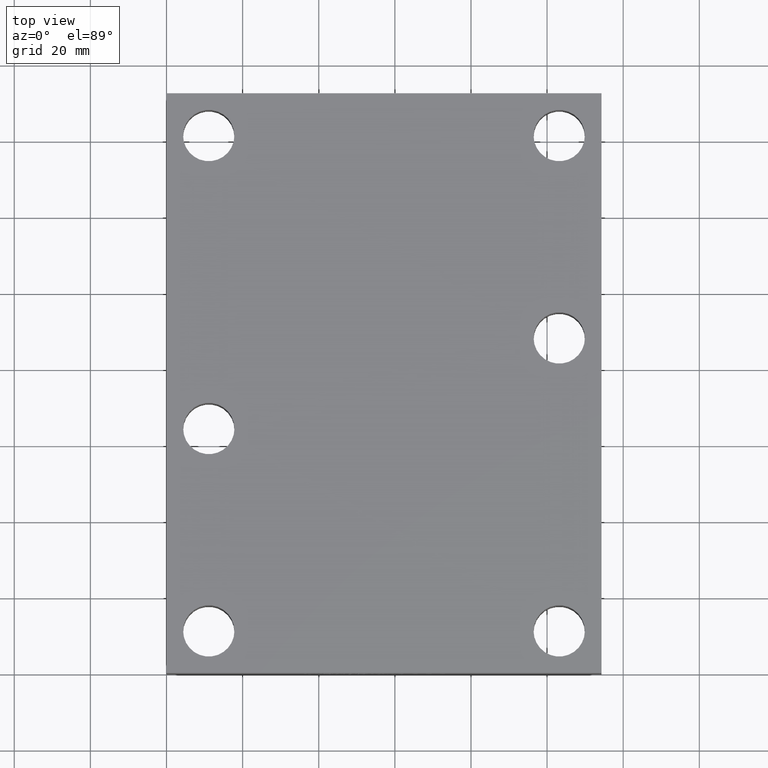
[diagram: clean part render]
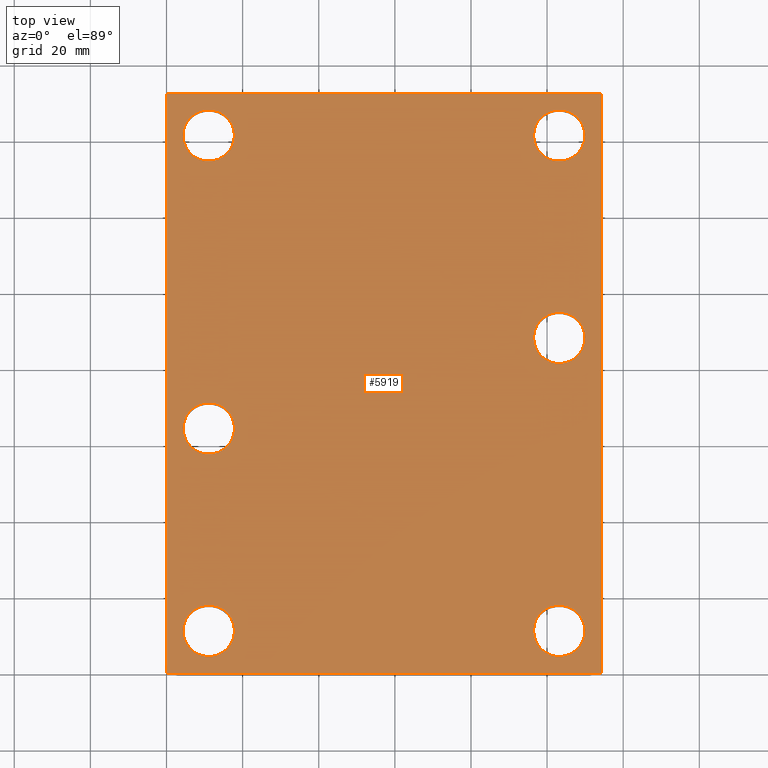
[diagram: same view with one face highlighted and labeled with its STEP entity id]
A machine part, top view. The second image highlights one B-rep face of the part: STEP entity #5919.
In plain terms, the highlighted planar face has unit normal (0, 0, 1).
Its self-contained STEP definition (entity closure, byte-faithful):
#33=CIRCLE('',#6163,6.7437);
#35=CIRCLE('',#6166,6.7437);
#37=CIRCLE('',#6169,6.7437);
#39=CIRCLE('',#6172,6.7437);
#41=CIRCLE('',#6175,6.7437);
#43=CIRCLE('',#6178,6.7437);
#83=FACE_BOUND('',#935,.T.);
#84=FACE_BOUND('',#936,.T.);
#85=FACE_BOUND('',#937,.T.);
#86=FACE_BOUND('',#938,.T.);
#87=FACE_BOUND('',#939,.T.);
#88=FACE_BOUND('',#940,.T.);
#307=PLANE('',#6183);
#608=FACE_OUTER_BOUND('',#934,.T.);
#934=EDGE_LOOP('',(#5248,#5249,#5250,#5251));
#935=EDGE_LOOP('',(#5252));
#936=EDGE_LOOP('',(#5253));
#937=EDGE_LOOP('',(#5254));
#938=EDGE_LOOP('',(#5255));
#939=EDGE_LOOP('',(#5256));
#940=EDGE_LOOP('',(#5257));
#1167=LINE('',#8941,#1781);
#1563=LINE('',#9950,#2177);
#1566=LINE('',#9956,#2180);
#1569=LINE('',#9960,#2183);
#1781=VECTOR('',#6506,10.);
#2177=VECTOR('',#7284,10.);
#2180=VECTOR('',#7289,10.);
#2183=VECTOR('',#7294,10.);
#2578=VERTEX_POINT('',#8938);
#2579=VERTEX_POINT('',#8940);
#2861=VERTEX_POINT('',#9913);
#2863=VERTEX_POINT('',#9919);
#2865=VERTEX_POINT('',#9925);
#2867=VERTEX_POINT('',#9931);
#2869=VERTEX_POINT('',#9937);
#2871=VERTEX_POINT('',#9943);
#2873=VERTEX_POINT('',#9949);
#2875=VERTEX_POINT('',#9955);
#3229=EDGE_CURVE('',#2579,#2578,#1167,.T.);
#3652=EDGE_CURVE('',#2861,#2861,#33,.T.);
#3655=EDGE_CURVE('',#2863,#2863,#35,.T.);
#3658=EDGE_CURVE('',#2865,#2865,#37,.T.);
#3661=EDGE_CURVE('',#2867,#2867,#39,.T.);
#3664=EDGE_CURVE('',#2869,#2869,#41,.T.);
#3667=EDGE_CURVE('',#2871,#2871,#43,.T.);
#3669=EDGE_CURVE('',#2873,#2579,#1563,.T.);
#3672=EDGE_CURVE('',#2875,#2873,#1566,.T.);
#3675=EDGE_CURVE('',#2578,#2875,#1569,.T.);
#5248=ORIENTED_EDGE('',*,*,#3229,.T.);
#5249=ORIENTED_EDGE('',*,*,#3675,.T.);
#5250=ORIENTED_EDGE('',*,*,#3672,.T.);
#5251=ORIENTED_EDGE('',*,*,#3669,.T.);
#5252=ORIENTED_EDGE('',*,*,#3652,.T.);
#5253=ORIENTED_EDGE('',*,*,#3655,.T.);
#5254=ORIENTED_EDGE('',*,*,#3658,.T.);
#5255=ORIENTED_EDGE('',*,*,#3661,.T.);
#5256=ORIENTED_EDGE('',*,*,#3664,.T.);
#5257=ORIENTED_EDGE('',*,*,#3667,.T.);
#5919=ADVANCED_FACE('',(#608,#83,#84,#85,#86,#87,#88),#307,.T.);
#6163=AXIS2_PLACEMENT_3D('',#9915,#7244,#7245);
#6166=AXIS2_PLACEMENT_3D('',#9921,#7251,#7252);
#6169=AXIS2_PLACEMENT_3D('',#9927,#7258,#7259);
#6172=AXIS2_PLACEMENT_3D('',#9933,#7265,#7266);
#6175=AXIS2_PLACEMENT_3D('',#9939,#7272,#7273);
#6178=AXIS2_PLACEMENT_3D('',#9945,#7279,#7280);
#6183=AXIS2_PLACEMENT_3D('',#9962,#7297,#7298);
#6506=DIRECTION('',(1.,0.,0.));
#7244=DIRECTION('center_axis',(0.,0.,-1.));
#7245=DIRECTION('ref_axis',(1.,0.,0.));
#7251=DIRECTION('center_axis',(0.,0.,-1.));
#7252=DIRECTION('ref_axis',(1.,0.,0.));
#7258=DIRECTION('center_axis',(0.,0.,-1.));
#7259=DIRECTION('ref_axis',(1.,0.,0.));
#7265=DIRECTION('center_axis',(0.,0.,-1.));
#7266=DIRECTION('ref_axis',(1.,0.,0.));
#7272=DIRECTION('center_axis',(0.,0.,-1.));
#7273=DIRECTION('ref_axis',(1.,0.,0.));
#7279=DIRECTION('center_axis',(0.,0.,-1.));
#7280=DIRECTION('ref_axis',(1.,0.,0.));
#7284=DIRECTION('',(0.,-1.,0.));
#7289=DIRECTION('',(-1.,0.,0.));
#7294=DIRECTION('',(0.,1.,0.));
#7297=DIRECTION('center_axis',(0.,0.,1.));
#7298=DIRECTION('ref_axis',(1.,0.,0.));
#8938=CARTESIAN_POINT('',(114.3,0.,25.4));
#8940=CARTESIAN_POINT('',(0.,0.,25.4));
#8941=CARTESIAN_POINT('',(0.,0.,25.4));
#9913=CARTESIAN_POINT('',(4.3688,11.0998,25.4));
#9915=CARTESIAN_POINT('Origin',(11.1125,11.0998,25.4));
#9919=CARTESIAN_POINT('',(96.4565,88.0872,25.4));
#9921=CARTESIAN_POINT('Origin',(103.2002,88.0872,25.4));
#9925=CARTESIAN_POINT('',(4.3561,141.2748,25.4));
#9927=CARTESIAN_POINT('Origin',(11.0998,141.2748,25.4));
#9931=CARTESIAN_POINT('',(96.4438,141.26972,25.4));
#9933=CARTESIAN_POINT('Origin',(103.1875,141.26972,25.4));
#9937=CARTESIAN_POINT('',(96.4438,11.0998,25.4));
#9939=CARTESIAN_POINT('Origin',(103.1875,11.0998,25.4));
#9943=CARTESIAN_POINT('',(4.3815,64.2874,25.4));
#9945=CARTESIAN_POINT('Origin',(11.1252,64.2874,25.4));
#9949=CARTESIAN_POINT('',(0.,152.4,25.4));
#9950=CARTESIAN_POINT('',(0.,152.4,25.4));
#9955=CARTESIAN_POINT('',(114.3,152.4,25.4));
#9956=CARTESIAN_POINT('',(114.3,152.4,25.4));
#9960=CARTESIAN_POINT('',(114.3,0.,25.4));
#9962=CARTESIAN_POINT('Origin',(57.15,76.2,25.4));